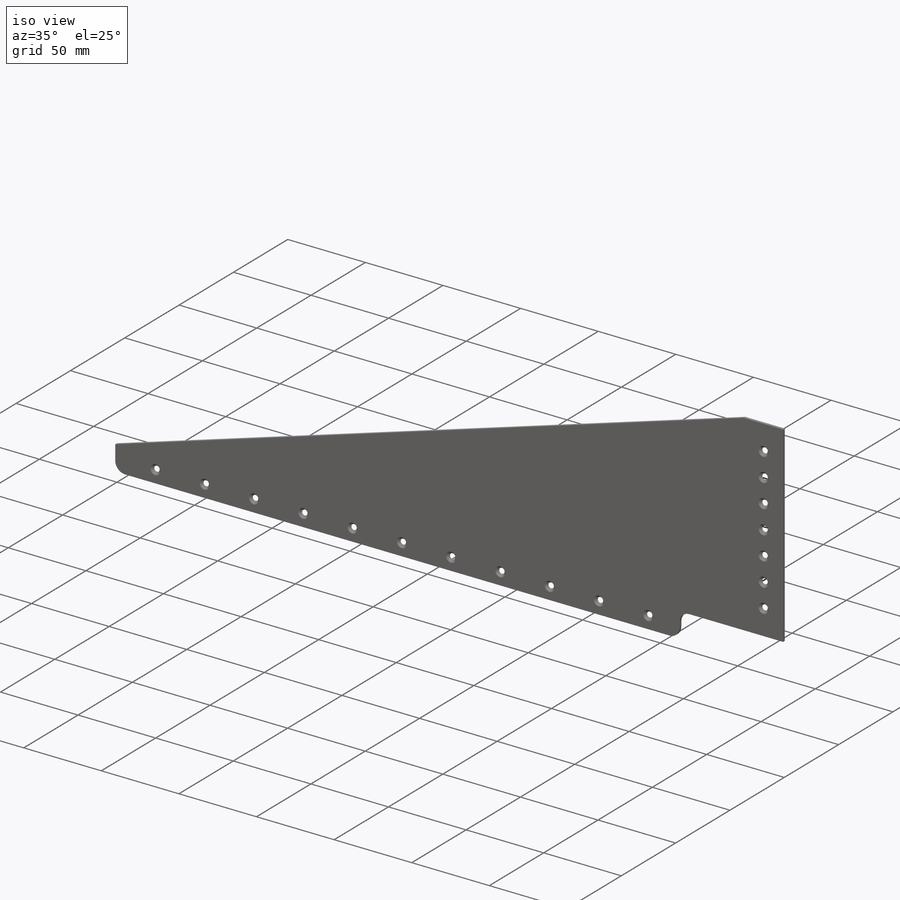
[diagram: iso view]
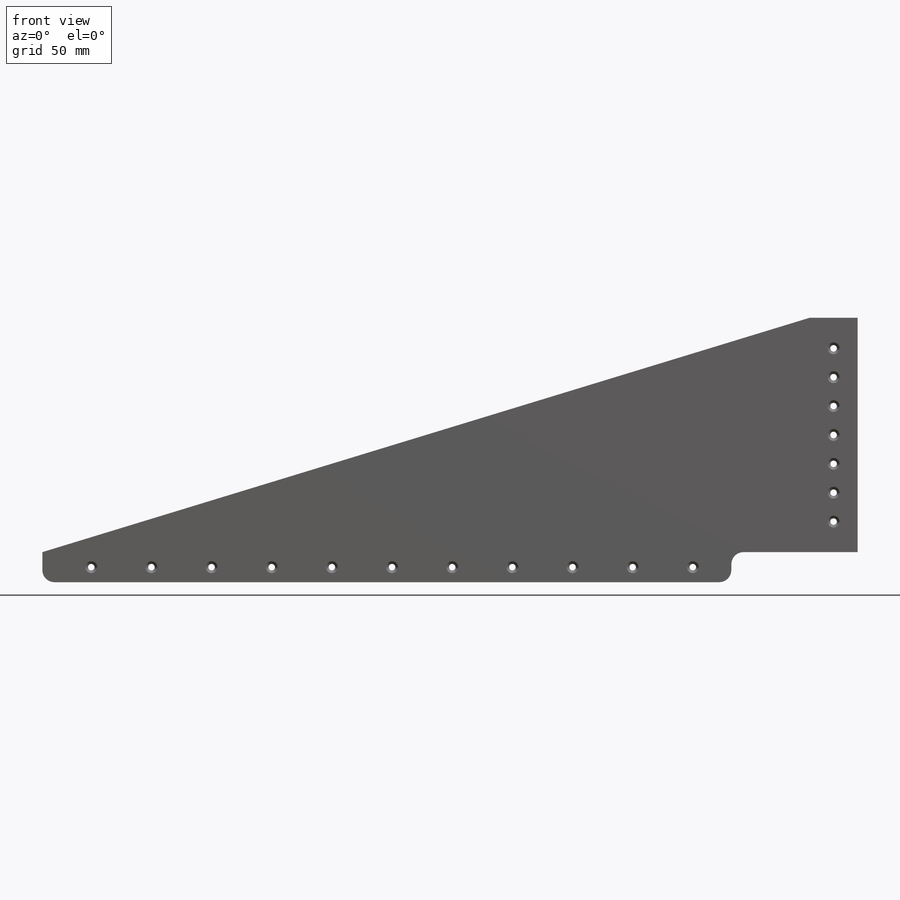
[diagram: front view]
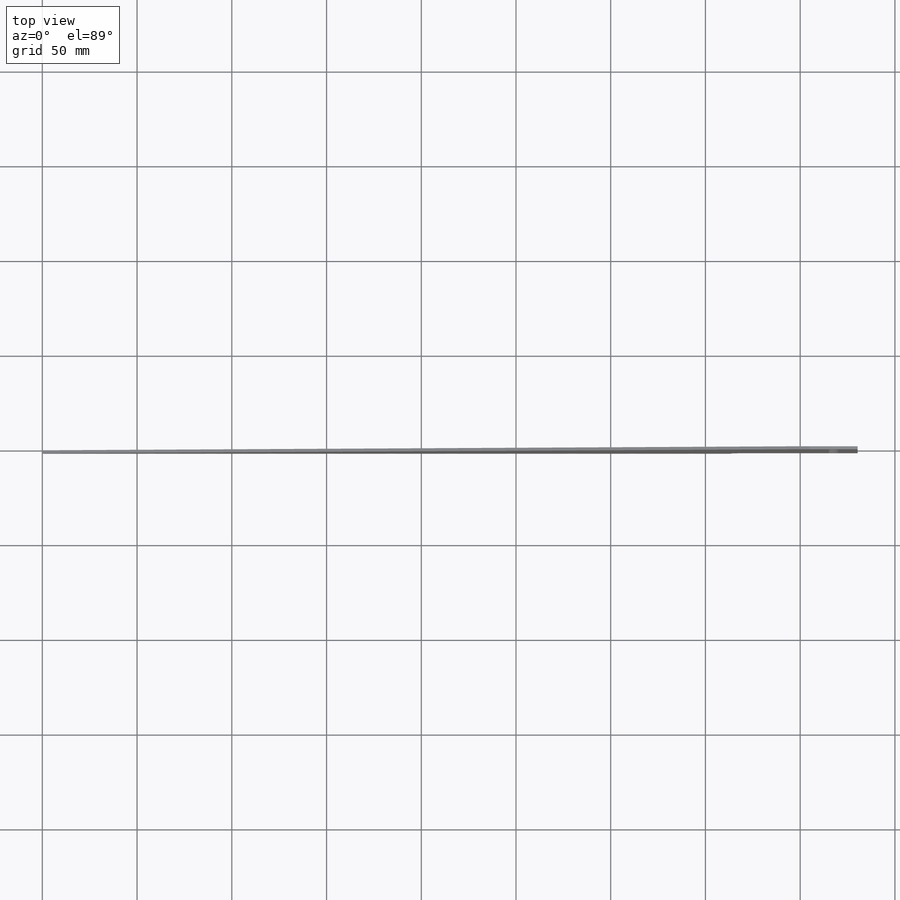
[diagram: top view]
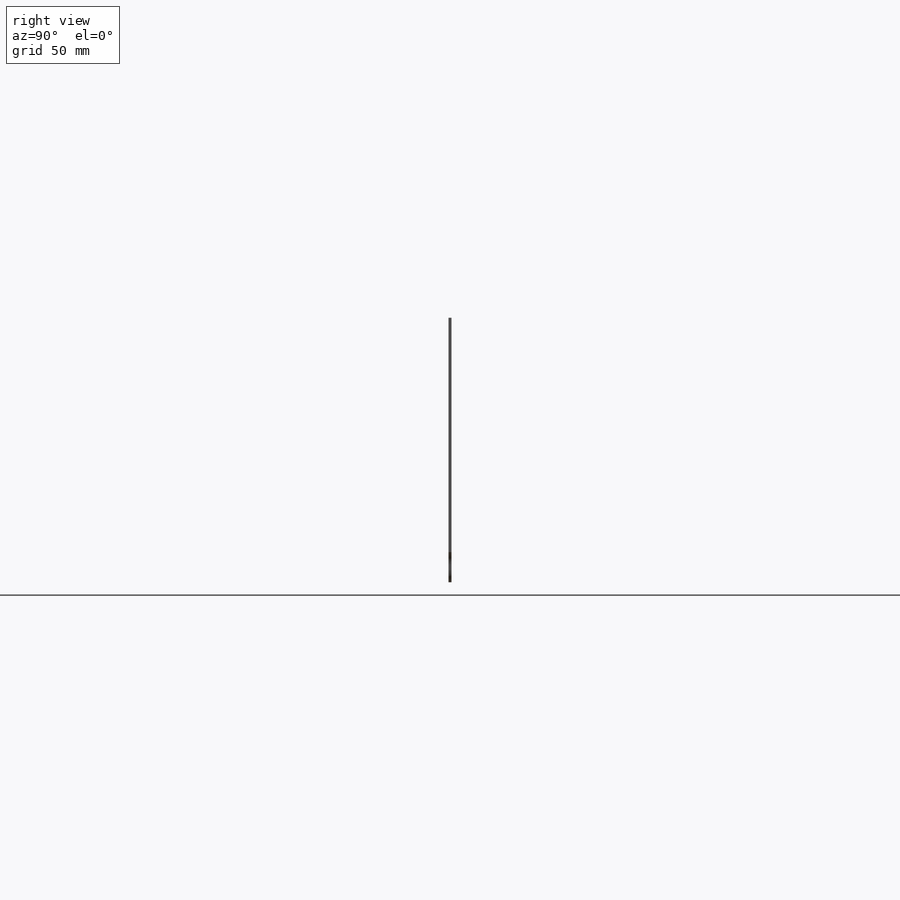
[diagram: right view]
SOLIDWORKS PART (.sldprt)
format: sldprt  version: not decoded by parser v0  size: 264,704 bytes
history: native  units: mm
features: sketch x5, hole x2, material x1, extrude x1 (+13 scaffold rows collapsed)
feature tree (22):
  scaffold x13  (default folders/planes/origin — collapsed)
  material  "Material <not specified>"
  sketch  "Sketch1"  dims[c1.D7=6.35mm c1.D1=476.885mm c1.D2=129.8702mm c2.D1=123.6726mm c2.D2=15.875mm c2.D3=426.72mm c2.D4=15.875mm c2.D5=25.4mm c2.D6=66.675mm c3.D3=430.3268mm]
  extrude  "Boss-Extrude1"  Depth=1.5875mm
  hole  "CSK for #6 Flat Head Socket Cap Screw1"  Diameter=3.6576mm Depth=1.524mm
  sketch  "Sketch2"  dims[D1=7.9375mm]
  sketch  "Sketch3"  dims[hole-wizard template sketch: 39 standard entries collapsed; hole parameters kept: c13.Hole Dia.=3.6576mm c13.Hole Depth=1.524mm c13.Near C'Sink Dia.=6.2738mm c13.D4=~33.297463mm c13.Near C'Sink Angle=82.0deg c14.D5=~14.816244mm c14.Drill Angle=118.0deg]
  hole  "CSK for #6 Flat Head Socket Cap Screw2"  Diameter=3.6576mm Depth=1.524mm
  sketch  "Sketch4"
  sketch  "Sketch5"  dims[hole-wizard template sketch: 39 standard entries collapsed; hole parameters kept: c13.Hole Dia.=3.6576mm c13.Hole Depth=1.524mm c13.Near C'Sink Dia.=6.2738mm c13.D4=~33.297463mm c13.Near C'Sink Angle=82.0deg c14.D5=~14.816244mm c14.Drill Angle=118.0deg]
decode coverage: 7 of 8 modeling features carry decoded parameters
note: ~ marks probable driven/reference dimensions
note: suppression state not decoded; provenance and decode notes live in map.json
